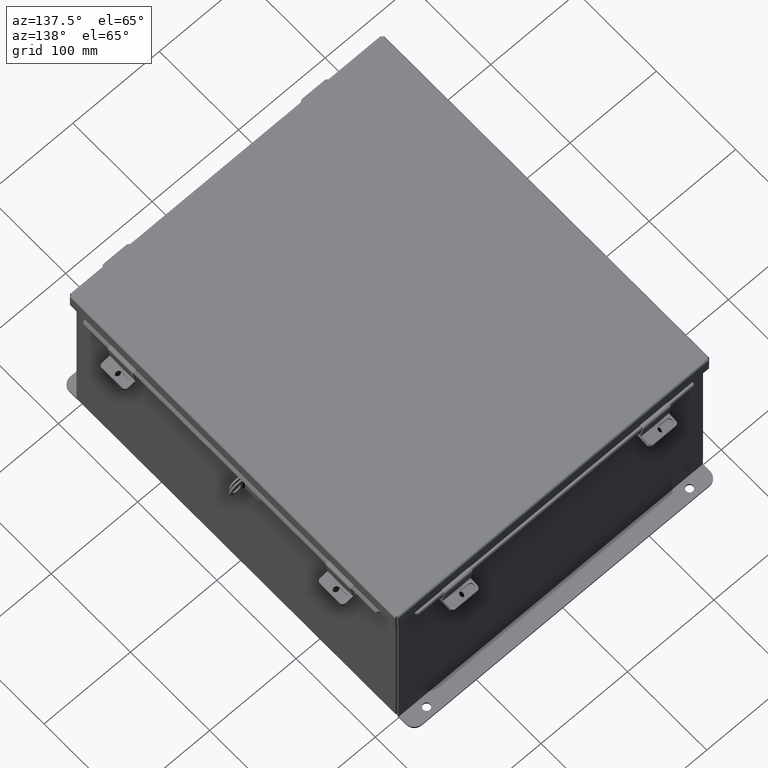
[diagram: clean part render]
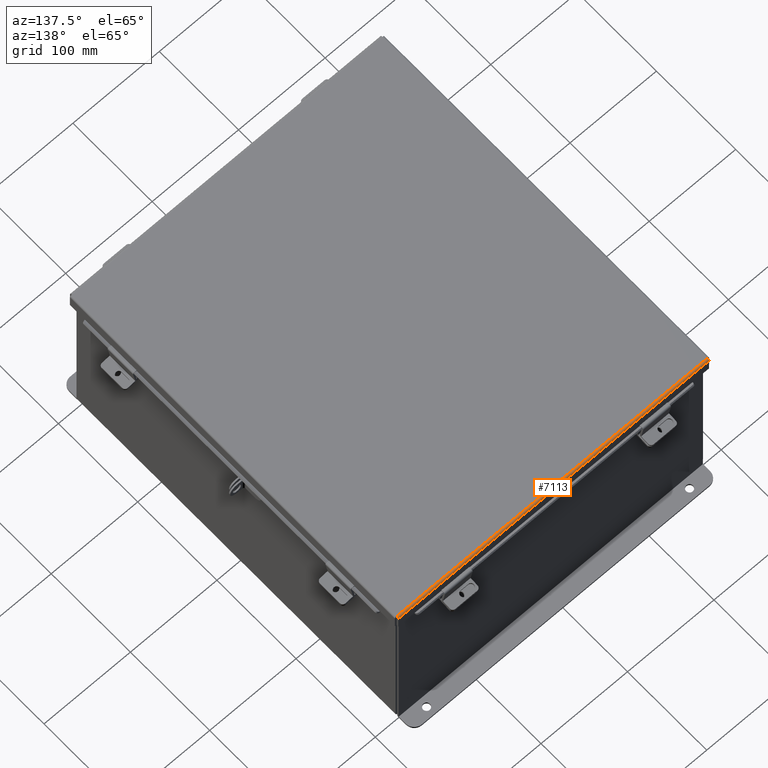
[diagram: same view with one face highlighted and labeled with its STEP entity id]
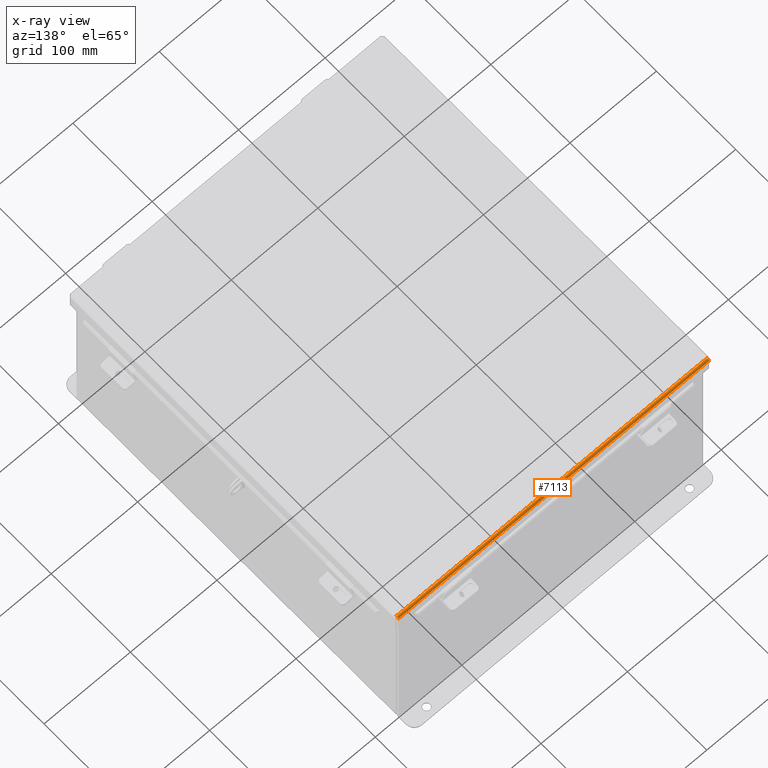
[diagram: x-ray of the same camera — body ghosted, the highlighted face saturated]
A machine part, auxiliary view. The second image highlights one B-rep face of the part: STEP entity #7113.
The next image is the same camera in x-ray: the body ghosted, the highlighted face saturated — about 0% of this face is hidden behind the body in this view.
In plain terms, the highlighted cylindrical surface (edge-blend (fillet) strip) has radius 2.2276 mm, axis along (1, -0, 0).
Its self-contained STEP definition (entity closure, byte-faithful):
#107 = CARTESIAN_POINT ( 'NONE',  ( -7.074478932188132100, 8.156250000000000000, 0.01300000000000010700 ) ) ;
#563 = CARTESIAN_POINT ( 'NONE',  ( -7.074478932188132100, 8.068550000000000100, 0.01300000000000010700 ) ) ;
#1458 = ORIENTED_EDGE ( 'NONE', *, *, #19106, .F. ) ;
#1559 = DIRECTION ( 'NONE',  ( -1.000000000000000000, -2.258600338820354400E-033, 0.0000000000000000000 ) ) ;
#1651 = CARTESIAN_POINT ( 'NONE',  ( -7.073490776823443400, 8.153967403743811500, -0.009955289458309040900 ) ) ;
#2367 = CARTESIAN_POINT ( 'NONE',  ( -7.074478932188132100, 8.156250000000000000, 0.01300000000000010700 ) ) ;
#2783 = CARTESIAN_POINT ( 'NONE',  ( 7.068550000000001000, 8.068550000000000100, -0.07470000000000015500 ) ) ;
#3189 = CARTESIAN_POINT ( 'NONE',  ( -7.072008543776410000, 8.138680782078321100, -0.04089574734180012600 ) ) ;
#3568 = LINE ( 'NONE', #17371, #15967 ) ;
#3798 = FACE_OUTER_BOUND ( 'NONE', #13579, .T. ) ;
#4319 = CARTESIAN_POINT ( 'NONE',  ( 7.071020388411723100, 8.122445747341801700, -0.05713078207832045200 ) ) ;
#4758 = CARTESIAN_POINT ( 'NONE',  ( -7.070526310729378300, 8.112717384578529000, -0.06363106625866843400 ) ) ;
#5131 = CARTESIAN_POINT ( 'NONE',  ( -7.068549999999999200, 8.068550000000000100, -0.07470000000000015500 ) ) ;
#5888 = CARTESIAN_POINT ( 'NONE',  ( 7.072502621458757400, 8.145181066258668800, -0.03116738457852800300 ) ) ;
#6310 = CARTESIAN_POINT ( 'NONE',  ( -7.069044077682343100, 8.080029903154994000, -0.07469999999999998900 ) ) ;
#6484 = DIRECTION ( 'NONE',  ( 1.000000000000000000, 2.258600338820354400E-033, -0.0000000000000000000 ) ) ;
#6940 = EDGE_CURVE ( 'NONE', #7872, #15235, #19909, .T. ) ;
#7113 = ADVANCED_FACE ( 'NONE', ( #3798 ), #15218, .T. ) ;
#7442 = CARTESIAN_POINT ( 'NONE',  ( 7.073984854505792600, 8.156250000000001800, 0.001520096845007103900 ) ) ;
#7702 = VERTEX_POINT ( 'NONE', #2367 ) ;
#7872 = VERTEX_POINT ( 'NONE', #13806 ) ;
#8170 = ORIENTED_EDGE ( 'NONE', *, *, #13838, .T. ) ;
#9287 = DIRECTION ( 'NONE',  ( 0.0000000000000000000, 1.000000000000000000, -3.577373637655407700E-015 ) ) ;
#10479 = CARTESIAN_POINT ( 'NONE',  ( 7.069044077682345800, 8.080029903154992300, -0.07469999999999998900 ) ) ;
#10863 = B_SPLINE_CURVE_WITH_KNOTS ( 'NONE', 3,
 ( #107, #10908, #1651, #12474, #3189, #14037, #4758, #15630, #6310, #17193 ),
 .UNSPECIFIED., .F., .F.,
 ( 4, 2, 2, 2, 4 ),
 ( 0.0000000000000000000, 0.2500000000000000000, 0.5000000000000000000, 0.7500000000000000000, 1.000000000000000000 ),
 .UNSPECIFIED. ) ;
#10908 = CARTESIAN_POINT ( 'NONE',  ( -7.073984854505787300, 8.156250000000000000, 0.001520096845007104900 ) ) ;
#10928 = ORIENTED_EDGE ( 'NONE', *, *, #6940, .F. ) ;
#11300 = CARTESIAN_POINT ( 'NONE',  ( 7.156250000000001800, 8.156250000000000000, 0.01299999999999901400 ) ) ;
#12474 = CARTESIAN_POINT ( 'NONE',  ( -7.072502621458752100, 8.145181066258665200, -0.03116738457852799200 ) ) ;
#13344 = AXIS2_PLACEMENT_3D ( 'NONE', #563, #1559, #9287 ) ;
#13569 = CARTESIAN_POINT ( 'NONE',  ( 7.074478932188136500, 8.156250000000000000, 0.01300000000000010700 ) ) ;
#13579 = EDGE_LOOP ( 'NONE', ( #1458, #14180, #8170, #10928 ) ) ;
#13619 = CARTESIAN_POINT ( 'NONE',  ( 7.070526310729379200, 8.112717384578527200, -0.06363106625866844800 ) ) ;
#13806 = CARTESIAN_POINT ( 'NONE',  ( 7.068550000000001000, 8.068550000000000100, -0.07470000000000015500 ) ) ;
#13838 = EDGE_CURVE ( 'NONE', #7702, #15235, #16494, .T. ) ;
#14037 = CARTESIAN_POINT ( 'NONE',  ( -7.071020388411722200, 8.122445747341801700, -0.05713078207832045900 ) ) ;
#14180 = ORIENTED_EDGE ( 'NONE', *, *, #18342, .F. ) ;
#14441 = DIRECTION ( 'NONE',  ( 1.000000000000000000, -2.239330294933626500E-032, -0.0000000000000000000 ) ) ;
#15194 = CARTESIAN_POINT ( 'NONE',  ( 7.072008543776412600, 8.138680782078321100, -0.04089574734180014700 ) ) ;
#15218 = CYLINDRICAL_SURFACE ( 'NONE', #13344, 0.08770000000000026400 ) ;
#15235 = VERTEX_POINT ( 'NONE', #13569 ) ;
#15630 = CARTESIAN_POINT ( 'NONE',  ( -7.069538155364688800, 8.091505289458309500, -0.07241740374381128200 ) ) ;
#15967 = VECTOR ( 'NONE', #6484, 39.37007874015748100 ) ;
#16494 = LINE ( 'NONE', #11300, #17456 ) ;
#16697 = CARTESIAN_POINT ( 'NONE',  ( 7.069538155364694100, 8.091505289458311300, -0.07241740374381128200 ) ) ;
#16751 = CARTESIAN_POINT ( 'NONE',  ( 7.073490776823445200, 8.153967403743813200, -0.009955289458309037400 ) ) ;
#17193 = CARTESIAN_POINT ( 'NONE',  ( -7.068549999999999200, 8.068550000000000100, -0.07470000000000015500 ) ) ;
#17291 = VERTEX_POINT ( 'NONE', #5131 ) ;
#17371 = CARTESIAN_POINT ( 'NONE',  ( -7.074478932188132100, 8.068550000000000100, -0.07470000000000015500 ) ) ;
#17456 = VECTOR ( 'NONE', #14441, 39.37007874015748100 ) ;
#18342 = EDGE_CURVE ( 'NONE', #7702, #17291, #10863, .T. ) ;
#18343 = CARTESIAN_POINT ( 'NONE',  ( 7.074478932188136500, 8.156250000000000000, 0.01300000000000010700 ) ) ;
#19106 = EDGE_CURVE ( 'NONE', #17291, #7872, #3568, .T. ) ;
#19909 = B_SPLINE_CURVE_WITH_KNOTS ( 'NONE', 3,
 ( #2783, #10479, #16697, #13619, #4319, #15194, #5888, #16751, #7442, #18343 ),
 .UNSPECIFIED., .F., .F.,
 ( 4, 2, 2, 2, 4 ),
 ( 0.0000000000000000000, 0.2500000000000000000, 0.5000000000000000000, 0.7500000000000000000, 1.000000000000000000 ),
 .UNSPECIFIED. ) ;